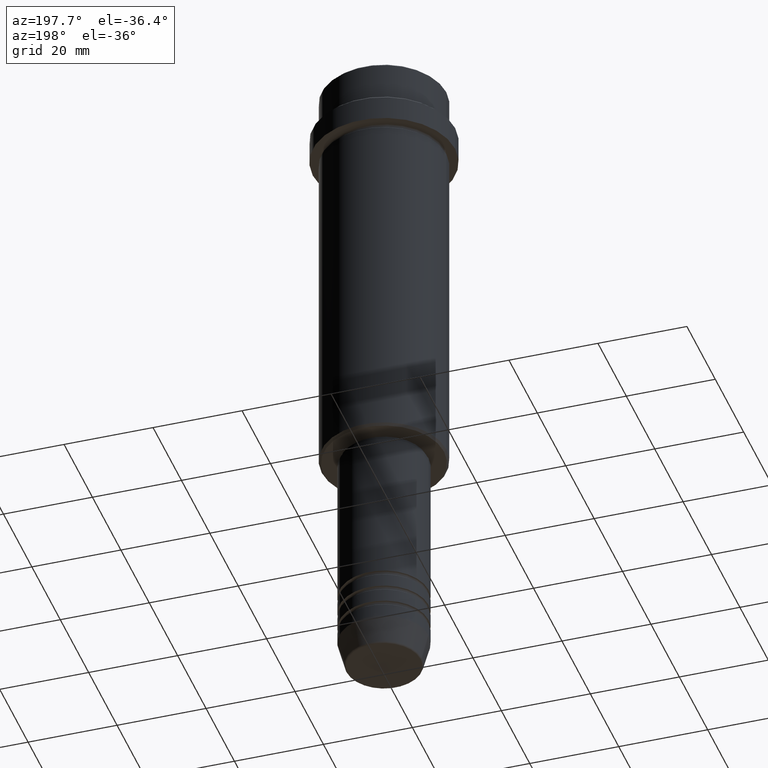
[diagram: clean part render]
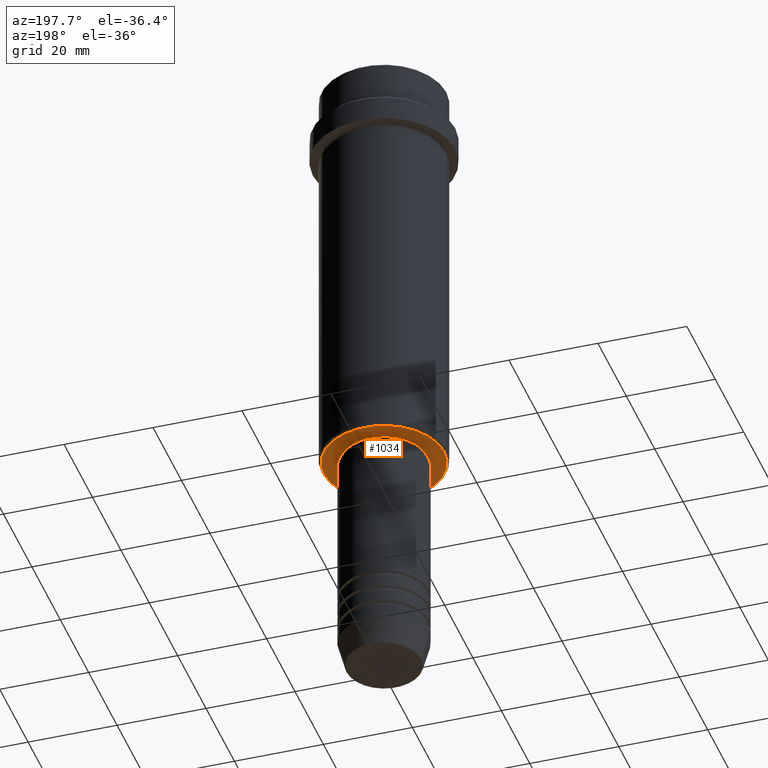
[diagram: same view with one face highlighted and labeled with its STEP entity id]
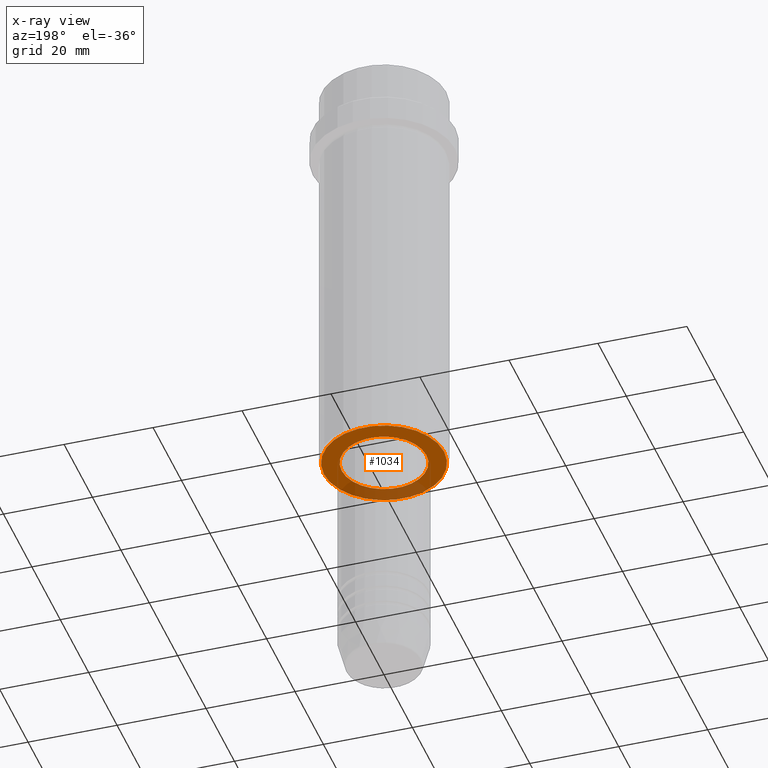
[diagram: x-ray of the same camera — body ghosted, the highlighted face saturated]
A machine part, auxiliary view. The second image highlights one B-rep face of the part: STEP entity #1034.
The next image is the same camera in x-ray: the body ghosted, the highlighted face saturated — about 25% of this face is hidden behind the body in this view.
In plain terms, the highlighted planar face has unit normal (0, 0, -1).
Its self-contained STEP definition (entity closure, byte-faithful):
#55 = FACE_OUTER_BOUND ( 'NONE', #1004, .T. ) ;
#58 = DIRECTION ( 'NONE',  ( -0.000000000000000000, -0.000000000000000000, 1.000000000000000000 ) ) ;
#73 = CARTESIAN_POINT ( 'NONE',  ( 0.000000000000000000, 0.000000000000000000, -95.99999999999998579 ) ) ;
#118 = CIRCLE ( 'NONE', #465, 13.50000000000001243 ) ;
#129 = CARTESIAN_POINT ( 'NONE',  ( -13.50000000000001243, 1.683889348827610851E-15, -95.99999999999998579 ) ) ;
#275 = DIRECTION ( 'NONE',  ( 1.000000000000000000, 0.000000000000000000, 0.000000000000000000 ) ) ;
#369 = CARTESIAN_POINT ( 'NONE',  ( 0.000000000000000000, 14.00000000000000000, -95.99999999999998579 ) ) ;
#390 = PLANE ( 'NONE',  #1028 ) ;
#397 = VERTEX_POINT ( 'NONE', #129 ) ;
#401 = AXIS2_PLACEMENT_3D ( 'NONE', #940, #58, #275 ) ;
#410 = DIRECTION ( 'NONE',  ( 1.000000000000000000, 0.000000000000000000, 0.000000000000000000 ) ) ;
#424 = VERTEX_POINT ( 'NONE', #489 ) ;
#434 = VERTEX_POINT ( 'NONE', #1378 ) ;
#451 = AXIS2_PLACEMENT_3D ( 'NONE', #1306, #842, #410 ) ;
#465 = AXIS2_PLACEMENT_3D ( 'NONE', #73, #494, #860 ) ;
#470 = AXIS2_PLACEMENT_3D ( 'NONE', #772, #1213, #1068 ) ;
#487 = FACE_BOUND ( 'NONE', #704, .T. ) ;
#489 = CARTESIAN_POINT ( 'NONE',  ( 13.50000000000001243, 0.000000000000000000, -95.99999999999998579 ) ) ;
#494 = DIRECTION ( 'NONE',  ( 0.000000000000000000, 0.000000000000000000, -1.000000000000000000 ) ) ;
#497 = EDGE_CURVE ( 'NONE', #961, #434, #919, .T. ) ;
#561 = EDGE_CURVE ( 'NONE', #424, #397, #118, .T. ) ;
#614 = ORIENTED_EDGE ( 'NONE', *, *, #561, .T. ) ;
#688 = CIRCLE ( 'NONE', #401, 9.499999999999996447 ) ;
#704 = EDGE_LOOP ( 'NONE', ( #847, #1207 ) ) ;
#772 = CARTESIAN_POINT ( 'NONE',  ( 0.000000000000000000, 0.000000000000000000, -95.99999999999998579 ) ) ;
#818 = EDGE_CURVE ( 'NONE', #434, #961, #688, .T. ) ;
#842 = DIRECTION ( 'NONE',  ( -0.000000000000000000, -0.000000000000000000, 1.000000000000000000 ) ) ;
#847 = ORIENTED_EDGE ( 'NONE', *, *, #818, .T. ) ;
#860 = DIRECTION ( 'NONE',  ( -1.000000000000000000, 0.000000000000000000, 0.000000000000000000 ) ) ;
#919 = CIRCLE ( 'NONE', #451, 9.499999999999996447 ) ;
#935 = CARTESIAN_POINT ( 'NONE',  ( -9.499999999999996447, 1.163414459189985091E-15, -95.99999999999998579 ) ) ;
#940 = CARTESIAN_POINT ( 'NONE',  ( 0.000000000000000000, 0.000000000000000000, -95.99999999999998579 ) ) ;
#945 = ORIENTED_EDGE ( 'NONE', *, *, #1115, .T. ) ;
#950 = DIRECTION ( 'NONE',  ( 0.000000000000000000, 0.000000000000000000, -1.000000000000000000 ) ) ;
#961 = VERTEX_POINT ( 'NONE', #935 ) ;
#1004 = EDGE_LOOP ( 'NONE', ( #614, #945 ) ) ;
#1008 = CIRCLE ( 'NONE', #470, 13.50000000000001243 ) ;
#1028 = AXIS2_PLACEMENT_3D ( 'NONE', #369, #950, #1170 ) ;
#1034 = ADVANCED_FACE ( 'NONE', ( #55, #487 ), #390, .T. ) ;
#1068 = DIRECTION ( 'NONE',  ( -1.000000000000000000, 0.000000000000000000, 0.000000000000000000 ) ) ;
#1115 = EDGE_CURVE ( 'NONE', #397, #424, #1008, .T. ) ;
#1170 = DIRECTION ( 'NONE',  ( -1.000000000000000000, 0.000000000000000000, -0.000000000000000000 ) ) ;
#1207 = ORIENTED_EDGE ( 'NONE', *, *, #497, .T. ) ;
#1213 = DIRECTION ( 'NONE',  ( 0.000000000000000000, 0.000000000000000000, -1.000000000000000000 ) ) ;
#1306 = CARTESIAN_POINT ( 'NONE',  ( 0.000000000000000000, 0.000000000000000000, -95.99999999999998579 ) ) ;
#1378 = CARTESIAN_POINT ( 'NONE',  ( 9.499999999999996447, 0.000000000000000000, -95.99999999999998579 ) ) ;